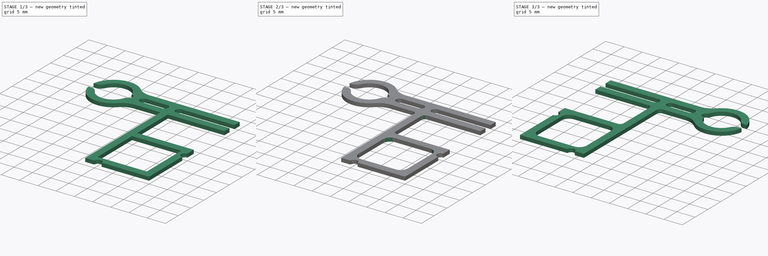
[diagram: build sequence overview — one tinted view per stage of 3, left to right]
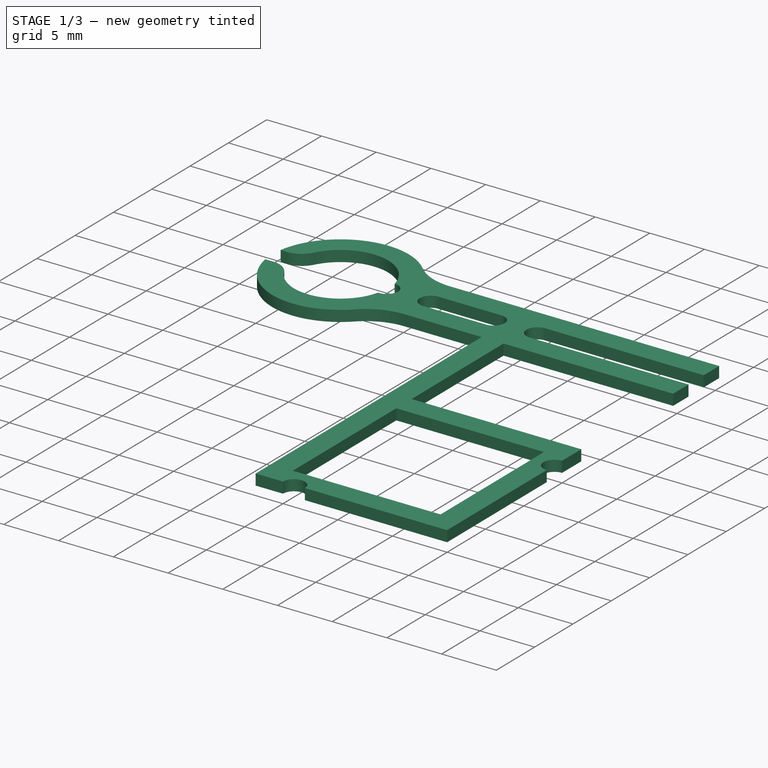
[diagram: stage 1 of 3 — iso view after this stage's code; geometry added in this stage tinted green]
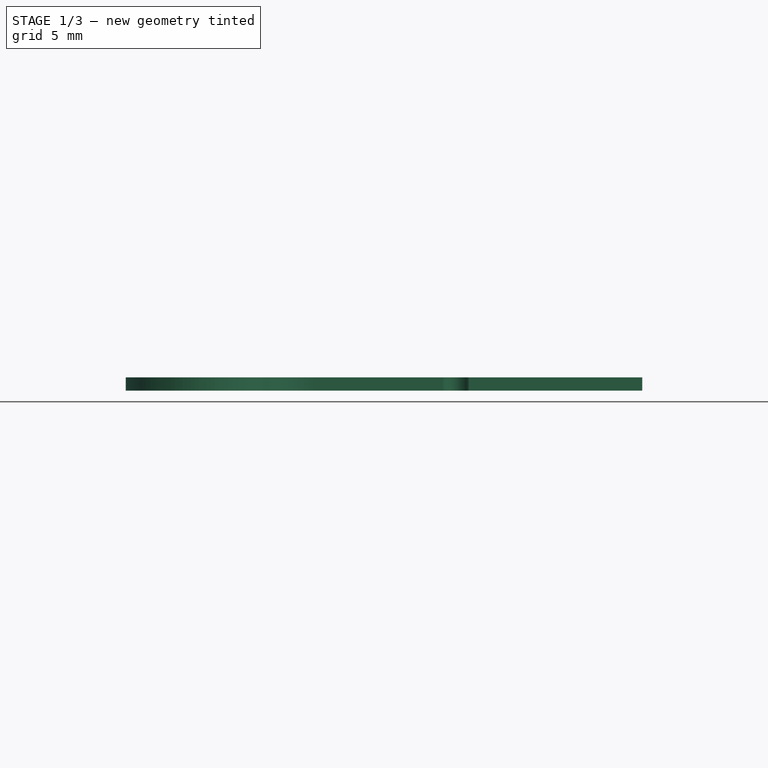
[diagram: stage 1 of 3 — front view after this stage's code; geometry added in this stage tinted green]
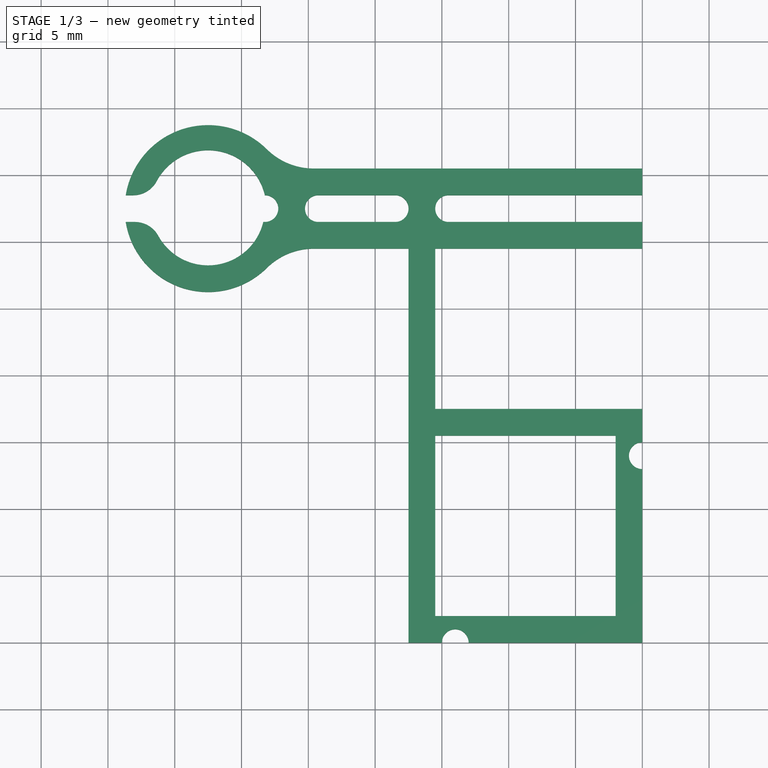
[diagram: stage 1 of 3 — top view after this stage's code; geometry added in this stage tinted green]
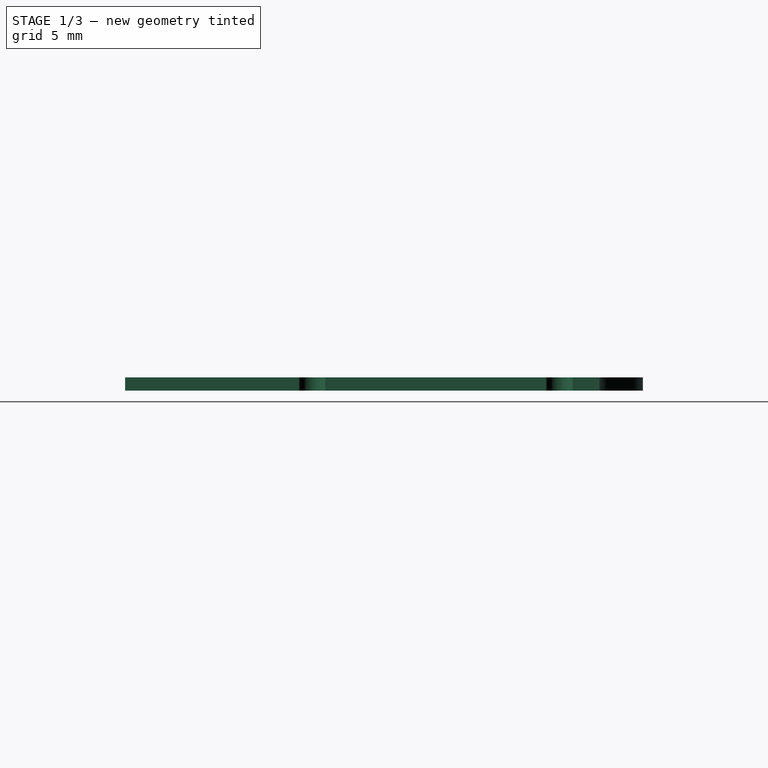
[diagram: stage 1 of 3 — right view after this stage's code; geometry added in this stage tinted green]
FCSTD DOCUMENT  (FreeCAD 0.16R6703 (Git))
Label: micro_kal
License: All rights reserved
LicenseURL: http://en.wikipedia.org/wiki/All_rights_reserved
objects: PartDesign::Fillet×4, Part::Mirroring×3, Sketcher::SketchObject×1, PartDesign::Pad×1
note: 10 computed .brp shape members not serialized (recipe doc carries the construction recipe); baked Part::Feature solids carry a one-line shape summary decoded from their .brp

FEATURE [Sketcher::SketchObject] Sketch
  sketch-geometry (37):
    g0: LineSegment StartX=0 StartY=35.5 StartZ=0 EndX=-27.0171 EndY=35.5 EndZ=0
    g1: LineSegment StartX=-27.0171 StartY=29.5 StartZ=0 EndX=-17.5 EndY=29.5 EndZ=0
    g2: LineSegment StartX=-17.5 StartY=29.5 StartZ=0 EndX=-17.5 EndY=0 EndZ=0
    g3: LineSegment StartX=0 StartY=17.5 StartZ=0 EndX=-15.5 EndY=17.5 EndZ=0
    g4: LineSegment StartX=-15.5 StartY=17.5 StartZ=0 EndX=-15.5 EndY=29.5 EndZ=0
    g5: LineSegment StartX=-15.5 StartY=29.5 StartZ=0 EndX=0 EndY=29.5 EndZ=0
    g6: LineSegment StartX=0 StartY=29.5 StartZ=0 EndX=0 EndY=31.5 EndZ=0
    g7: ArcOfCircle CenterX=-32.5 CenterY=32.5 CenterZ=0 NormalX=0 NormalY=0 NormalZ=1 Radius=4.25 StartAngle=3.37911 EndAngle=6.04735
    g8: ArcOfCircle CenterX=-32.5 CenterY=32.5 CenterZ=0 NormalX=0 NormalY=0 NormalZ=1 Radius=6.25 StartAngle=0.500655 EndAngle=2.9809
    g9: LineSegment [constr] StartX=-32.5 StartY=32.5 StartZ=0 EndX=-32.5 EndY=0 EndZ=0
    g10: LineSegment [constr] StartX=-32.5 StartY=32.5 StartZ=0 EndX=0 EndY=32.5 EndZ=0
    g11: LineSegment [constr] StartX=-27.0171 StartY=35.5 StartZ=0 EndX=-27.0171 EndY=29.5 EndZ=0
    g12: LineSegment StartX=-15.5 StartY=15.5 StartZ=0 EndX=-2 EndY=15.5 EndZ=0
    g13: LineSegment StartX=-2 StartY=15.5 StartZ=0 EndX=-2 EndY=2 EndZ=0
    g14: LineSegment StartX=-2 StartY=2 StartZ=0 EndX=-15.5 EndY=2 EndZ=0
    g15: LineSegment StartX=-15.5 StartY=2 StartZ=0 EndX=-15.5 EndY=15.5 EndZ=0
    g16: ArcOfCircle CenterX=-32.5 CenterY=32.5 CenterZ=0 NormalX=0 NormalY=0 NormalZ=1 Radius=6.25 StartAngle=3.30228 EndAngle=5.78253
    g17: ArcOfCircle CenterX=-28.25 CenterY=32.5 CenterZ=0 NormalX=0 NormalY=0 NormalZ=1 Radius=1 StartAngle=4.59447 EndAngle=7.85398
    g18: ArcOfCircle CenterX=-32.5 CenterY=32.5 CenterZ=0 NormalX=0 NormalY=0 NormalZ=1 Radius=4.36606 StartAngle=0.231091 EndAngle=2.9105
    g19: ArcOfCircle CenterX=-24.25 CenterY=32.5 CenterZ=0 NormalX=0 NormalY=0 NormalZ=1 Radius=1 StartAngle=1.5708 EndAngle=4.71239
    g20: ArcOfCircle CenterX=-18.5 CenterY=32.5 CenterZ=0 NormalX=0 NormalY=0 NormalZ=1 Radius=1 StartAngle=4.71239 EndAngle=7.85398
    g21: LineSegment StartX=-24.25 StartY=31.5 StartZ=0 EndX=-18.5 EndY=31.5 EndZ=0
    g22: LineSegment StartX=-24.25 StartY=33.5 StartZ=0 EndX=-18.5 EndY=33.5 EndZ=0
    g23: LineSegment [constr] StartX=-24.25 StartY=33.5 StartZ=0 EndX=-24.25 EndY=31.5 EndZ=0
    g24: ArcOfCircle CenterX=-14.5 CenterY=32.5 CenterZ=0 NormalX=0 NormalY=0 NormalZ=1 Radius=1 StartAngle=1.5708 EndAngle=4.71239
    g25: LineSegment StartX=-14.5 StartY=31.5 StartZ=0 EndX=0 EndY=31.5 EndZ=0
    g26: LineSegment StartX=-14.5 StartY=33.5 StartZ=0 EndX=0 EndY=33.5 EndZ=0
    g27: LineSegment [constr] StartX=-14.5 StartY=33.5 StartZ=0 EndX=-14.5 EndY=31.5 EndZ=0
    g28: LineSegment StartX=0 StartY=33.5 StartZ=0 EndX=0 EndY=35.5 EndZ=0
    g29: LineSegment StartX=-38.6695 StartY=33.5 StartZ=0 EndX=-36.75 EndY=33.5 EndZ=0
    g30: LineSegment StartX=-38.6695 StartY=31.5 StartZ=0 EndX=-36.6307 EndY=31.5 EndZ=0
    g31: ArcOfCircle CenterX=-14 CenterY=0 CenterZ=0 NormalX=0 NormalY=0 NormalZ=1 Radius=1 StartAngle=0 EndAngle=3.14159
    g32: LineSegment StartX=-17.5 StartY=0 StartZ=0 EndX=-15 EndY=0 EndZ=0
    g33: LineSegment StartX=0 StartY=0 StartZ=0 EndX=-13 EndY=0 EndZ=0
    g34: ArcOfCircle CenterX=0 CenterY=14 CenterZ=0 NormalX=0 NormalY=0 NormalZ=1 Radius=1 StartAngle=1.5708 EndAngle=4.71239
    g35: LineSegment StartX=0 StartY=17.5 StartZ=0 EndX=0 EndY=15 EndZ=0
    g36: LineSegment StartX=0 StartY=13 StartZ=0 EndX=0 EndY=0 EndZ=0
  constraints (111):
    c: PointOnObject(g0,g-2)
    c: Horizontal(g1)
    c: Coincident(g1,g2)
    c: Vertical(g2)
    c: Horizontal(g3)
    c: Coincident(g3,g4)
    c: Vertical(g4)
    c: Coincident(g4,g5)
    c: PointOnObject(g5,g-2)
    c: Horizontal(g5)
    c: Coincident(g5,g6)
    c: DistanceX(g1,g4) = 2
    c: DistanceY(g-1,g3) = 17.5
    c: Coincident(g9,g7)
    c: PointOnObject(g9,g-1)
    c: Vertical(g9)
    c: Equal(g10,g9)
    c: DistanceY(g9,g9) = 32.5
    c: Radius(g8) = 6.25
    c: PointOnObject(g8,g11)
    c: PointOnObject(g16,g11)
    c: Radius(g7) = 4.25
    c: DistanceX(g12,g3) = 2
    c: DistanceY(g-1,g13) = 2
    c: DistanceY(g13,g13) = 13.5
    c: Equal(g8,g16)
    c: Coincident(g8,g16)
    c: PointOnObject(g17,g10)
    c: Radius(g17) = 1
    c: Coincident(g17,g18)
    c: Tangent(g19,g22) = 1.5708
    c: Tangent(g19,g21) = -1.5708
    c: Tangent(g21,g20) = -1.5708
    c: Tangent(g22,g20) = 1.5708
    c: Horizontal(g21)
    c: Equal(g19,g20)
    c: PointOnObject(g19,g10)
    c: Coincident(g23,g19)
    c: Coincident(g23,g19)
    c: DistanceX(g17,g19) = 4
    c: DistanceX(g20,g24) = 4
    c: Tangent(g6,g28)
    c: Coincident(g28,g0)
    c: Equal(g6,g28)
    c: Coincident(g26,g28)
    c: Horizontal(g0)
    c: Coincident(g25,g6)
    c: Parallel(g25,g26)
    c: Coincident(g24,g26)
    c: Coincident(g27,g24)
    c: Coincident(g27,g24)
    c: Coincident(g25,g24)
    c: Horizontal(g26)
    c: Vertical(g27)
    c: PointOnObject(g24,g10)
    c: PointOnObject(g24,g27)
    c: DistanceY(g27,g27) = 2
    c: Horizontal(g10)
    c: Coincident(g7,g10)
    c: PointOnObject(g10,g-2)
    c: Coincident(g8,g7)
    c: Coincident(g18,g7)
    c: Coincident(g7,g17)
    c: Coincident(g11,g16)
    c: Coincident(g8,g11)
    c: Coincident(g0,g8)
    c: Coincident(g11,g1)
    c: DistanceY(g28,g28) = 2
    c: DistanceX(g7,g17) = 4.25
    c: DistanceX(g17,g17) = 0
    c: Equal(g23,g27)
    c: Symmetric(g8,g16,g10)
    c: Coincident(g29,g8)
    c: Horizontal(g29)
    c: Coincident(g30,g16)
    c: Coincident(g30,g7)
    c: Parallel(g29,g30)
    c: Coincident(g18,g29)
    c: DistanceY(g16,g8) = 2
    c: DistanceX(g26,g26) = 14.5
    c: Coincident(g12,g15)
    c: Horizontal(g12)
    c: Coincident(g13,g12)
    c: Coincident(g15,g14)
    c: Vertical(g15)
    c: Horizontal(g14)
    c: Coincident(g14,g13)
    c: Equal(g12,g13)
    c: Vertical(g13)
    c: Vertical(g11)
    c: PointOnObject(g2,g-1)
    c: DistanceX(g2,g14) = 2
    c: Radius(g31) = 1
    c: Coincident(g32,g2)
    c: Horizontal(g32)
    c: Coincident(g33,g-1)
    c: Horizontal(g33)
    c: Coincident(g33,g31)
    c: Coincident(g32,g31)
    c: PointOnObject(g31,g-1)
    c: DistanceX(g31,g-1) = 14
    c: PointOnObject(g34,g-2)
    c: Coincident(g35,g3)
    c: Vertical(g35)
    c: Coincident(g36,g-1)
    c: Vertical(g36)
    c: Coincident(g34,g35)
    c: Coincident(g36,g34)
    c: Equal(g34,g31)
    c: Equal(g33,g36)
    c: PointOnObject(g3,g-2)
FEATURE [PartDesign::Pad] Pad
  Length = 1
  Length2 = 100
  Sketch = -> Sketch
  Type = 0
FEATURE [PartDesign::Fillet] Fillet
  Base = -> Pad [Edge14,Edge23]
  Radius = 2
FEATURE [PartDesign::Fillet] Fillet001
  Base = -> Fillet [Edge83,Edge40]
  Radius = 5
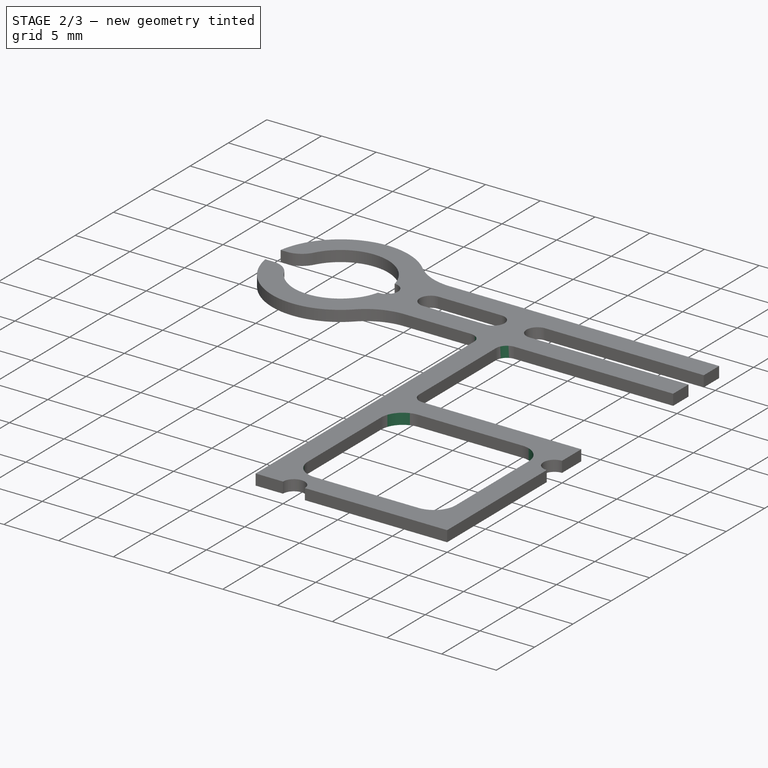
[diagram: stage 2 of 3 — iso view after this stage's code; geometry added in this stage tinted green]
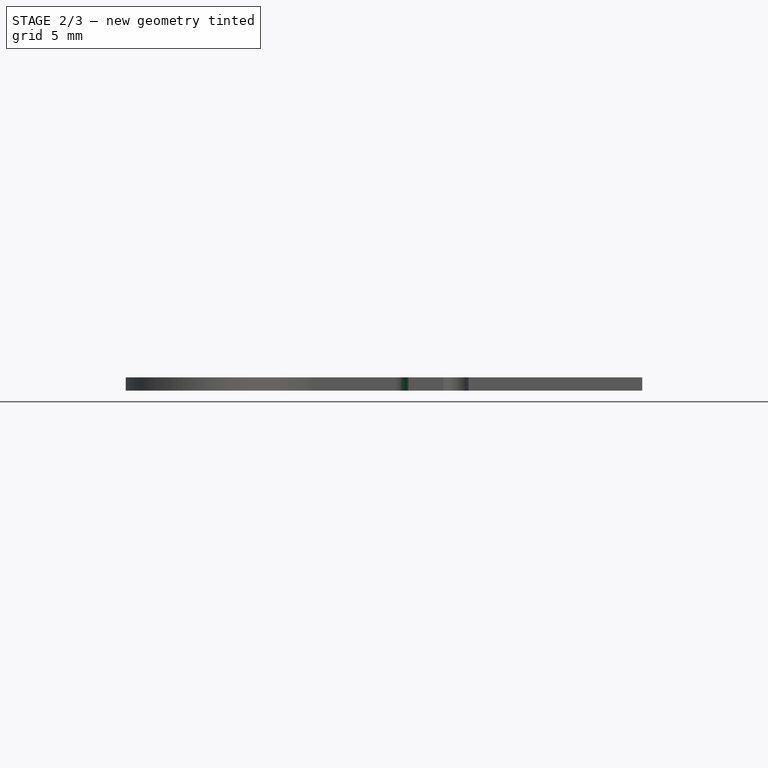
[diagram: stage 2 of 3 — front view after this stage's code; geometry added in this stage tinted green]
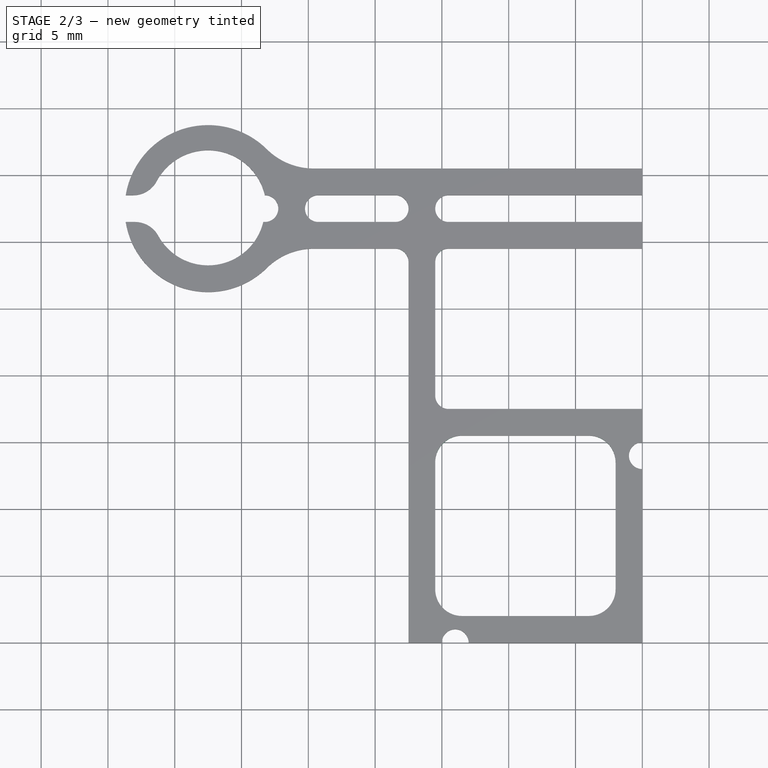
[diagram: stage 2 of 3 — top view after this stage's code; geometry added in this stage tinted green]
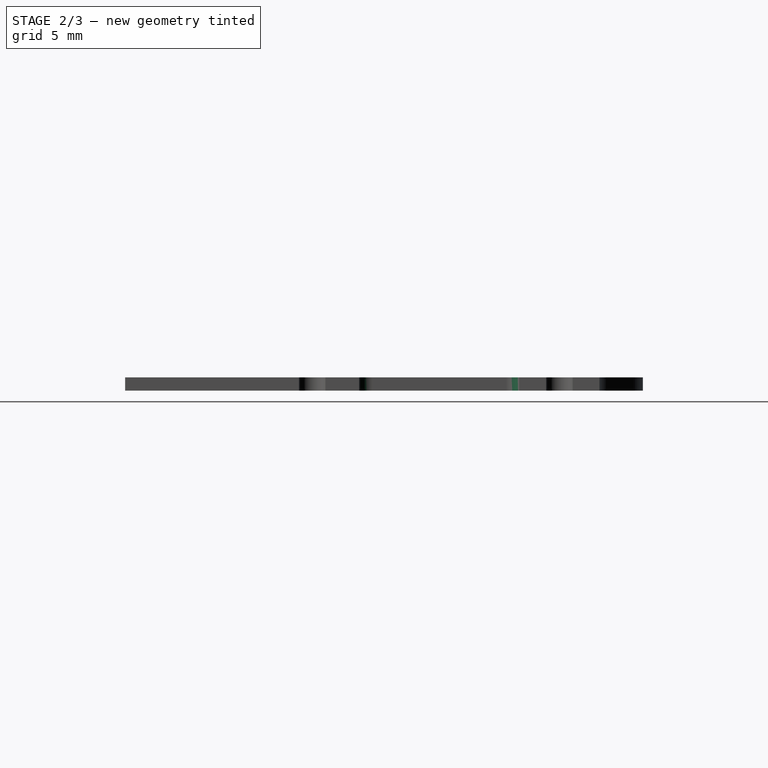
[diagram: stage 2 of 3 — right view after this stage's code; geometry added in this stage tinted green]
FEATURE [PartDesign::Fillet] Fillet002
  Base = -> Fillet001 [Edge72,Edge68,Edge78]
  Radius = 1
FEATURE [PartDesign::Fillet] Fillet003
  Base = -> Fillet002 [Edge102,Edge103,Edge105,Edge107]
  Radius = 2
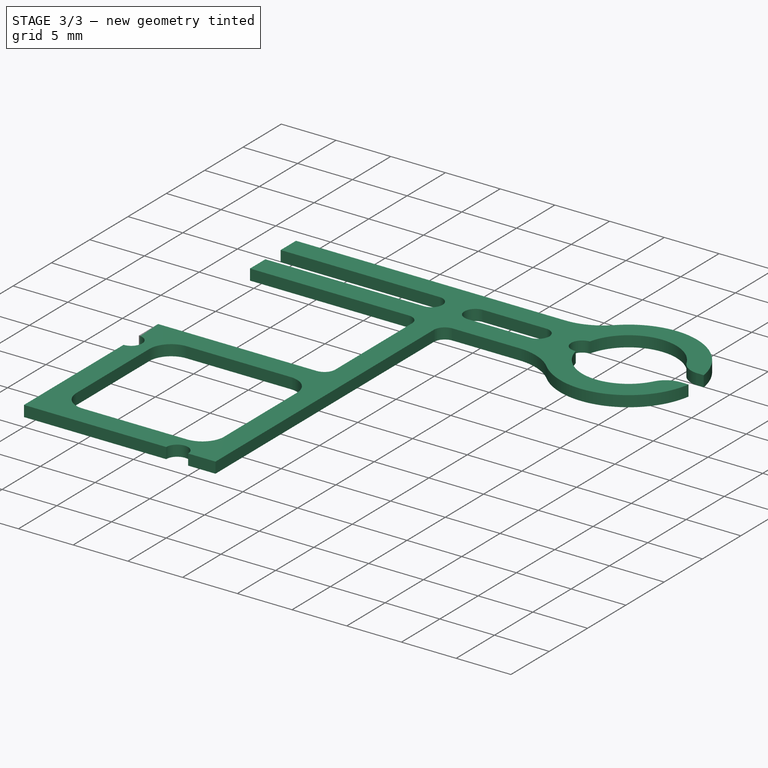
[diagram: stage 3 of 3 — iso view after this stage's code; geometry added in this stage tinted green]
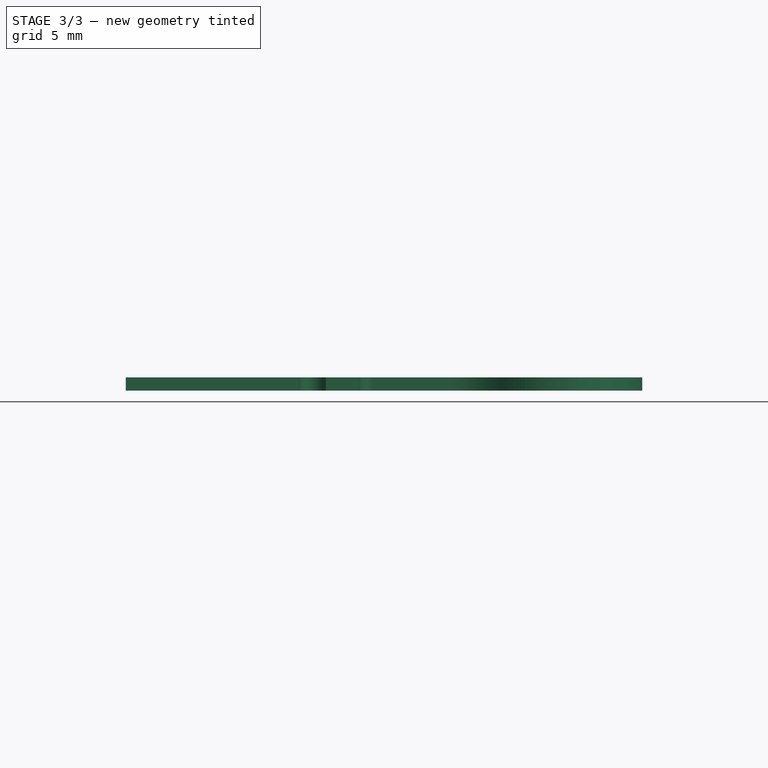
[diagram: stage 3 of 3 — front view after this stage's code; geometry added in this stage tinted green]
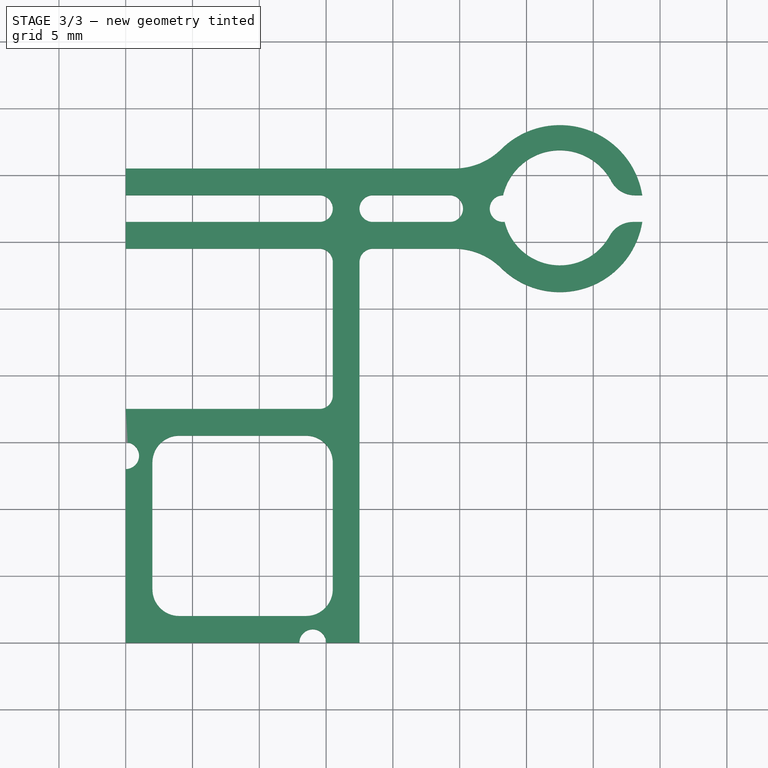
[diagram: stage 3 of 3 — top view after this stage's code; geometry added in this stage tinted green]
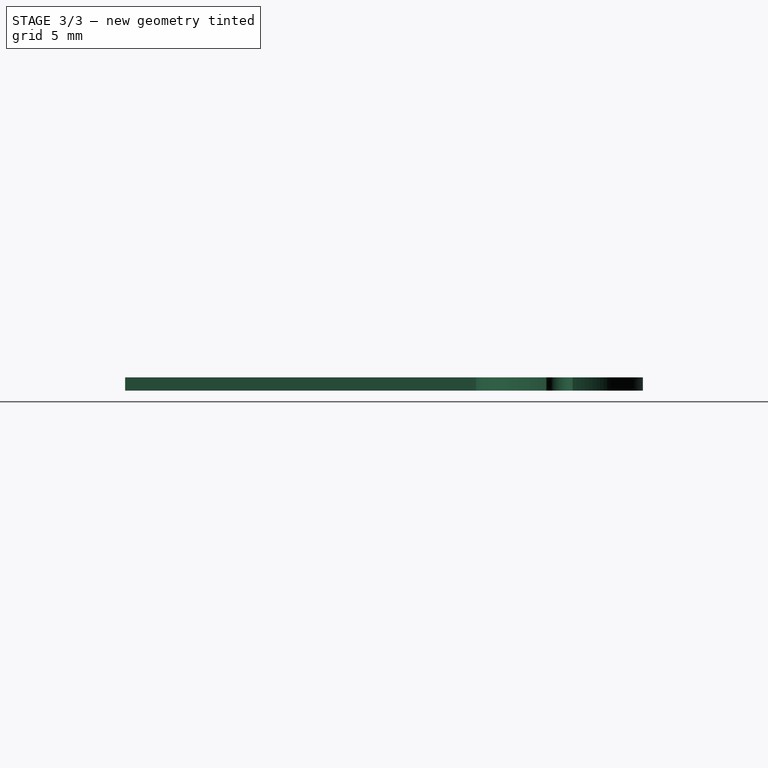
[diagram: stage 3 of 3 — right view after this stage's code; geometry added in this stage tinted green]
FEATURE [Part::Mirroring] Part__Mirroring  label="Fillet003 (Mirror #1)"
  Base = (0,0,0)
  Normal = (0,1,0)
  Source = -> Fillet003
FEATURE [Part::Mirroring] Part__Mirroring001  label="Fillet003 (Mirror #2)"
  Base = (0,0,0)
  Normal = (1,0,0)
  Source = -> Part__Mirroring
FEATURE [Part::Mirroring] Part__Mirroring002  label="Fillet003 (Mirror #3)"
  Base = (0,0,0)
  Normal = (0,1,0)
  Source = -> Part__Mirroring001
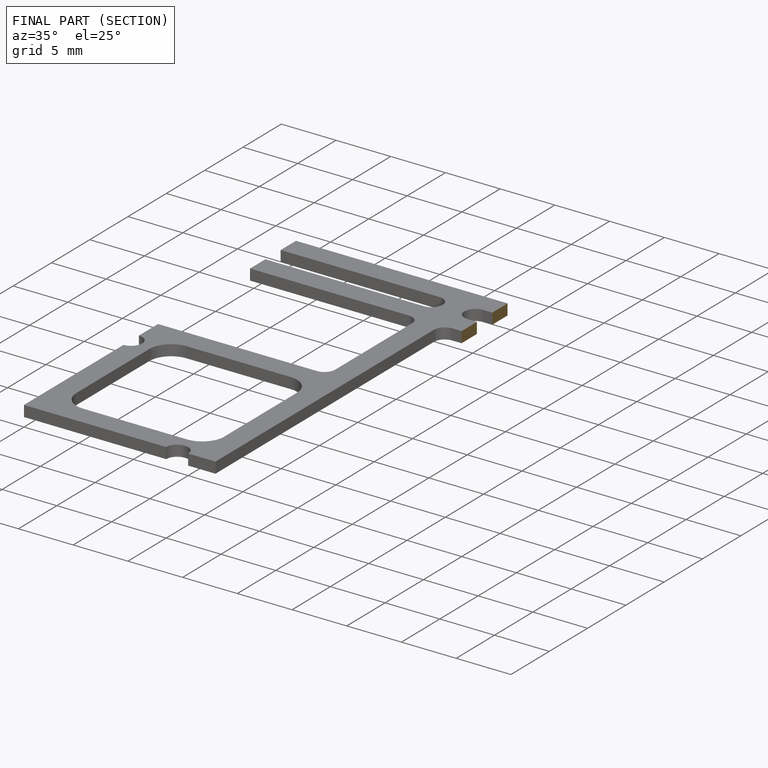
[diagram: finished part — half-section view (interior)]
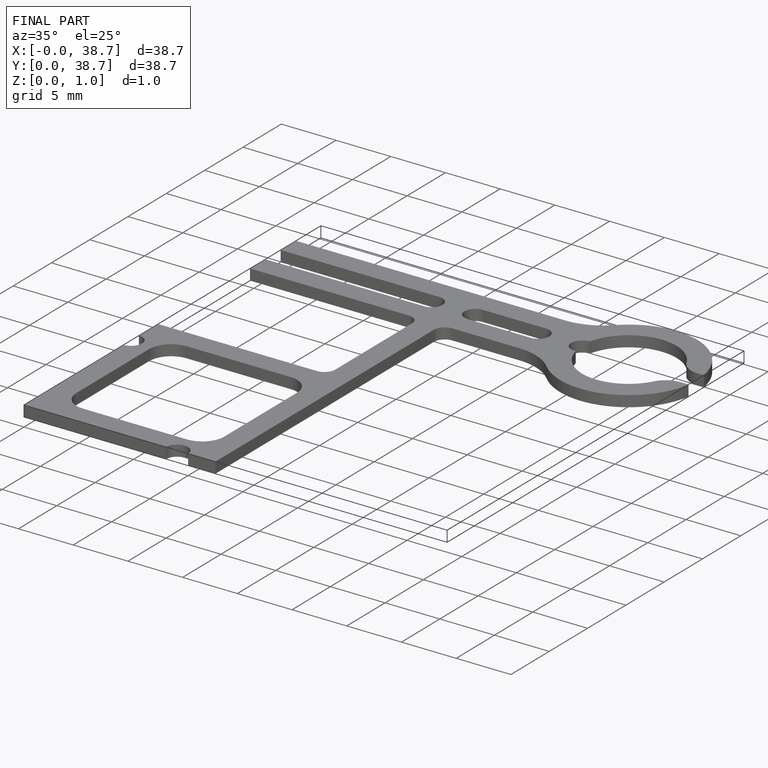
[diagram: finished part — iso view with bounding-box wireframe]
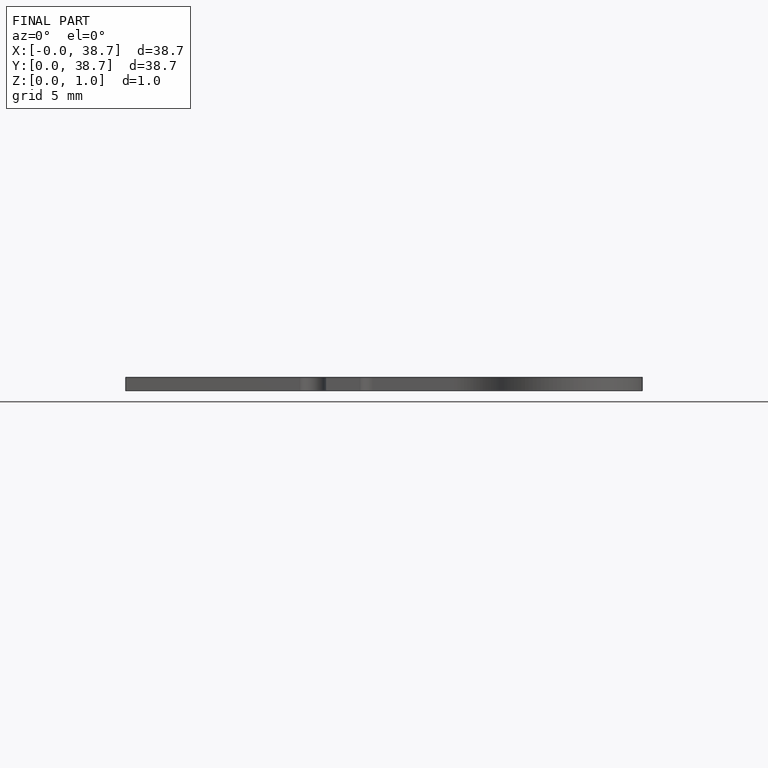
[diagram: finished part — front view with bounding-box wireframe]
